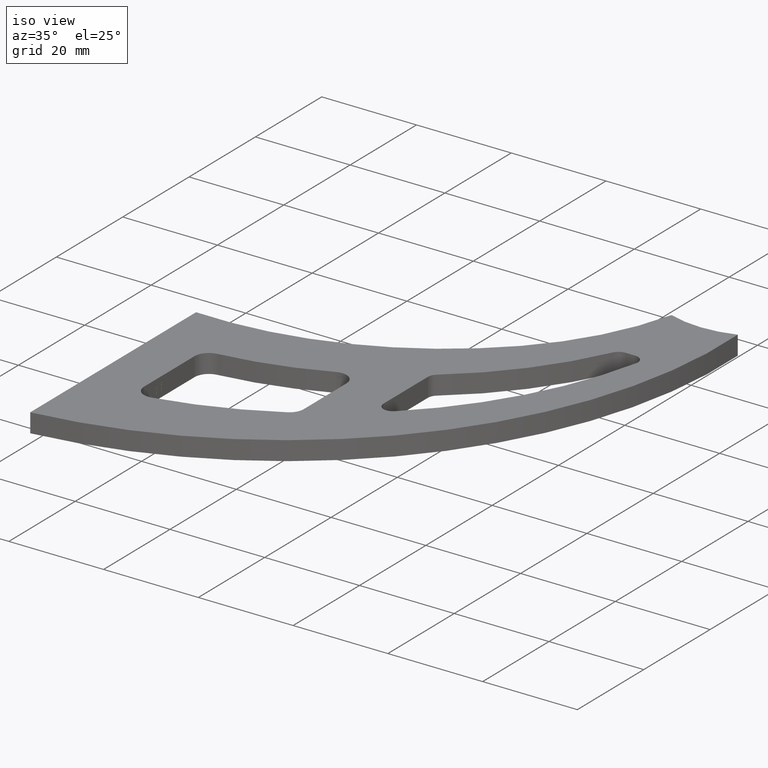
[diagram: clean part render]
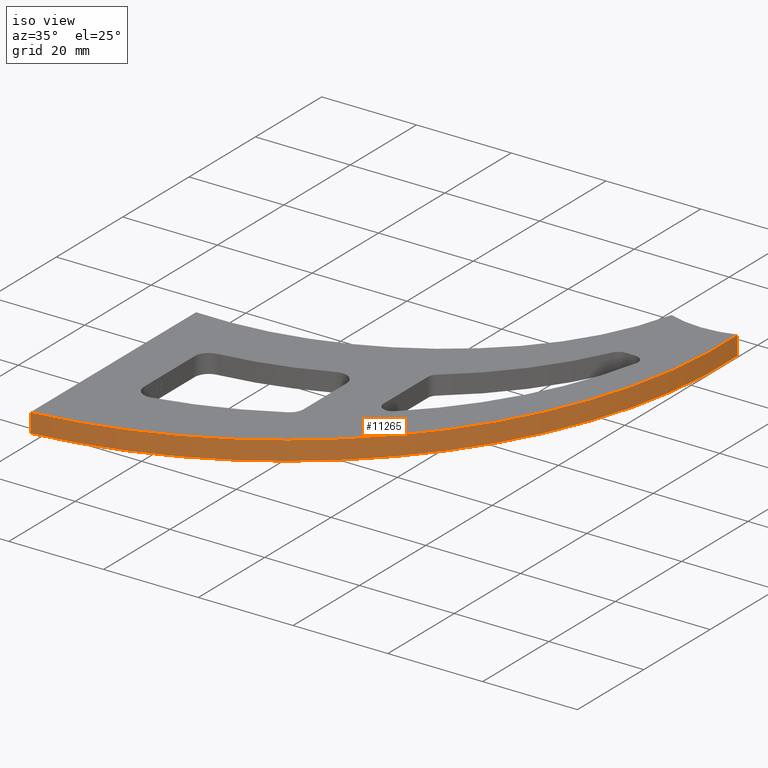
[diagram: same view with one face highlighted and labeled with its STEP entity id]
A machine part, iso view. The second image highlights one B-rep face of the part: STEP entity #11265.
In plain terms, the highlighted cylindrical surface (partial cylindrical patch) has radius 92 mm, axis along (-0, -0, -1).
Its self-contained STEP definition (entity closure, byte-faithful):
#1047 = AXIS2_PLACEMENT_3D ( 'NONE', #4781, #5665, #6770 ) ;
#1599 = LINE ( 'NONE', #7467, #8344 ) ;
#2206 = CARTESIAN_POINT ( 'NONE',  ( -9.878794471127335441, 66.46807869304582539, 2.000000000000000000 ) ) ;
#2550 = EDGE_CURVE ( 'NONE', #4567, #11892, #7279, .T. ) ;
#2740 = AXIS2_PLACEMENT_3D ( 'NONE', #2206, #4316, #6330 ) ;
#3095 = ORIENTED_EDGE ( 'NONE', *, *, #2550, .F. ) ;
#3265 = DIRECTION ( 'NONE',  ( -0.000000000000000000, -0.000000000000000000, -1.000000000000000000 ) ) ;
#3439 = CYLINDRICAL_SURFACE ( 'NONE', #2740, 91.99999999999941735 ) ;
#4115 = VERTEX_POINT ( 'NONE', #10344 ) ;
#4316 = DIRECTION ( 'NONE',  ( -0.000000000000000000, -0.000000000000000000, -1.000000000000000000 ) ) ;
#4318 = CARTESIAN_POINT ( 'NONE',  ( 81.99999999999997158, 71.18900302333739205, 2.000000000000000000 ) ) ;
#4338 = ORIENTED_EDGE ( 'NONE', *, *, #12375, .F. ) ;
#4567 = VERTEX_POINT ( 'NONE', #8404 ) ;
#4781 = CARTESIAN_POINT ( 'NONE',  ( -9.878794471127335441, 66.46807869304582539, 2.000000000000000000 ) ) ;
#5665 = DIRECTION ( 'NONE',  ( -0.000000000000000000, 0.000000000000000000, 1.000000000000000000 ) ) ;
#5751 = ORIENTED_EDGE ( 'NONE', *, *, #8636, .T. ) ;
#5932 = AXIS2_PLACEMENT_3D ( 'NONE', #8750, #7725, #10668 ) ;
#6156 = VERTEX_POINT ( 'NONE', #6358 ) ;
#6330 = DIRECTION ( 'NONE',  ( -1.000000000000000000, 0.000000000000000000, 0.000000000000000000 ) ) ;
#6358 = CARTESIAN_POINT ( 'NONE',  ( 2.220446049250313081E-13, -24.99999999999879918, -2.000000000000000000 ) ) ;
#6770 = DIRECTION ( 'NONE',  ( 1.000000000000000000, 0.000000000000000000, 0.000000000000000000 ) ) ;
#7279 = CIRCLE ( 'NONE', #1047, 91.99999999999938893 ) ;
#7343 = ORIENTED_EDGE ( 'NONE', *, *, #8180, .T. ) ;
#7467 = CARTESIAN_POINT ( 'NONE',  ( 2.220446049250313081E-13, -24.99999999999879918, 2.000000000000000000 ) ) ;
#7725 = DIRECTION ( 'NONE',  ( -0.000000000000000000, 0.000000000000000000, 1.000000000000000000 ) ) ;
#8180 = EDGE_CURVE ( 'NONE', #4567, #6156, #1599, .T. ) ;
#8306 = FACE_OUTER_BOUND ( 'NONE', #11587, .T. ) ;
#8308 = LINE ( 'NONE', #4318, #10821 ) ;
#8344 = VECTOR ( 'NONE', #12450, 1000.000000000000000 ) ;
#8404 = CARTESIAN_POINT ( 'NONE',  ( 2.220446049250313081E-13, -24.99999999999879918, 2.000000000000000000 ) ) ;
#8636 = EDGE_CURVE ( 'NONE', #6156, #4115, #11665, .T. ) ;
#8750 = CARTESIAN_POINT ( 'NONE',  ( -9.878794471127335441, 66.46807869304582539, -2.000000000000000000 ) ) ;
#10344 = CARTESIAN_POINT ( 'NONE',  ( 81.99999999999997158, 71.18900302333739205, -2.000000000000000000 ) ) ;
#10668 = DIRECTION ( 'NONE',  ( 1.000000000000000000, 0.000000000000000000, 0.000000000000000000 ) ) ;
#10821 = VECTOR ( 'NONE', #3265, 1000.000000000000000 ) ;
#11265 = ADVANCED_FACE ( 'NONE', ( #8306 ), #3439, .T. ) ;
#11587 = EDGE_LOOP ( 'NONE', ( #5751, #4338, #3095, #7343 ) ) ;
#11665 = CIRCLE ( 'NONE', #5932, 91.99999999999938893 ) ;
#11892 = VERTEX_POINT ( 'NONE', #12208 ) ;
#12208 = CARTESIAN_POINT ( 'NONE',  ( 81.99999999999997158, 71.18900302333739205, 2.000000000000000000 ) ) ;
#12375 = EDGE_CURVE ( 'NONE', #11892, #4115, #8308, .T. ) ;
#12450 = DIRECTION ( 'NONE',  ( -0.000000000000000000, -0.000000000000000000, -1.000000000000000000 ) ) ;